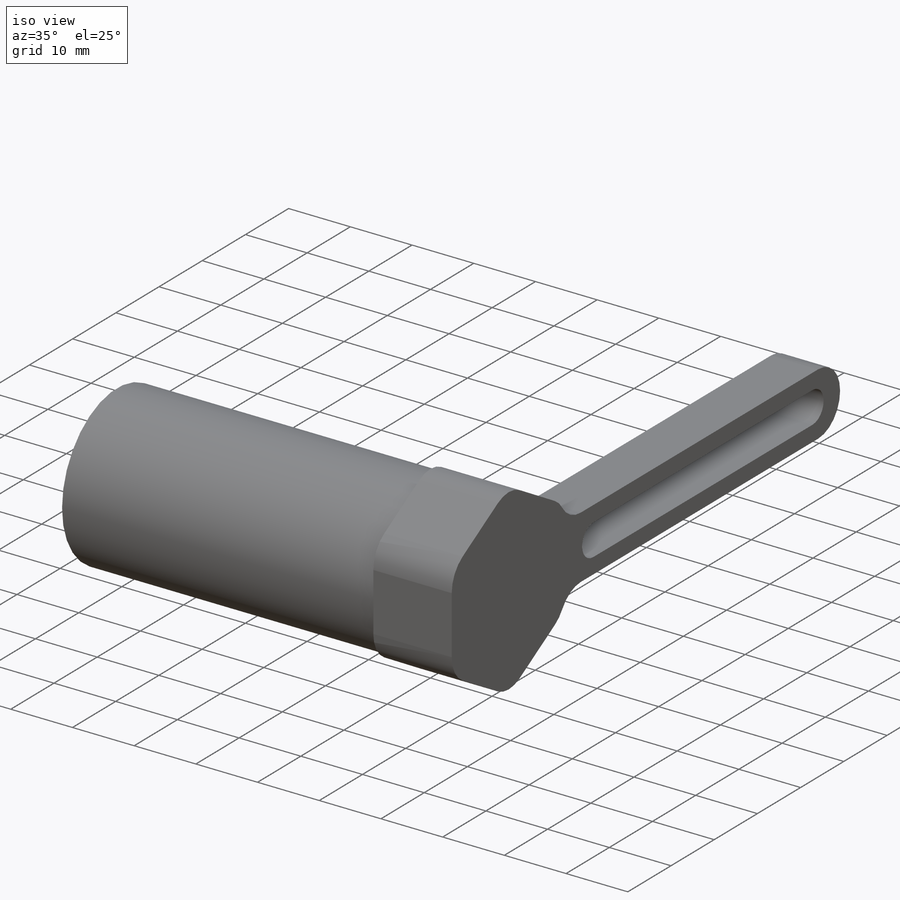
[diagram: iso view]
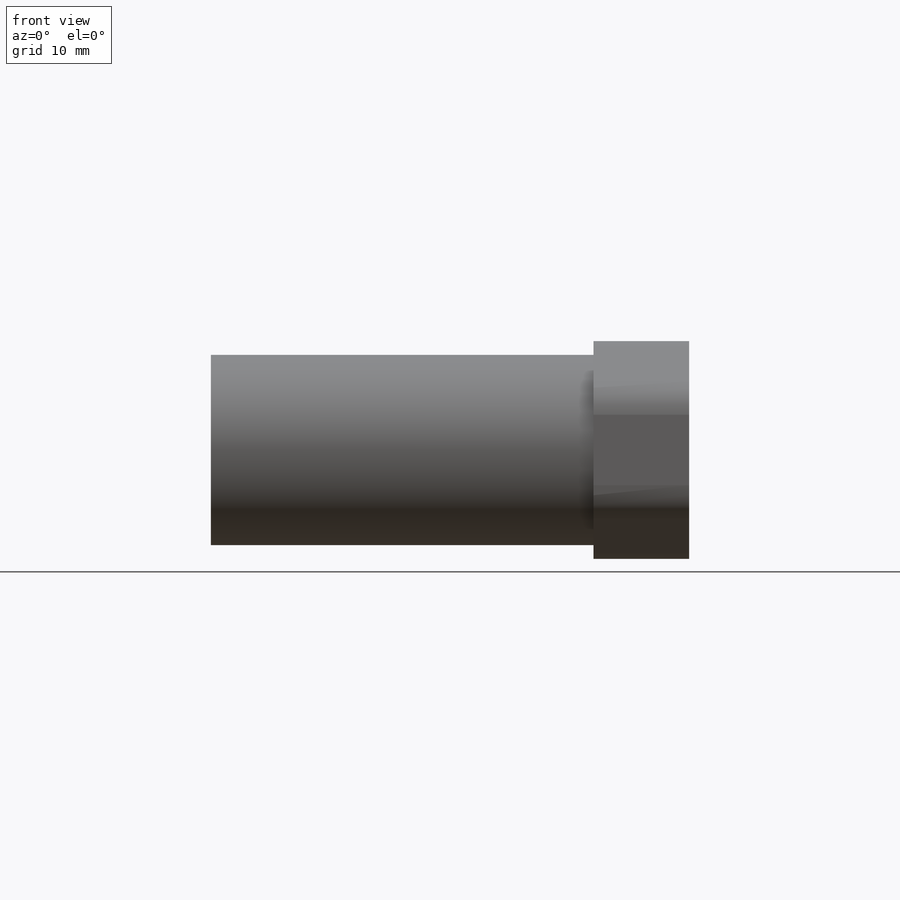
[diagram: front view]
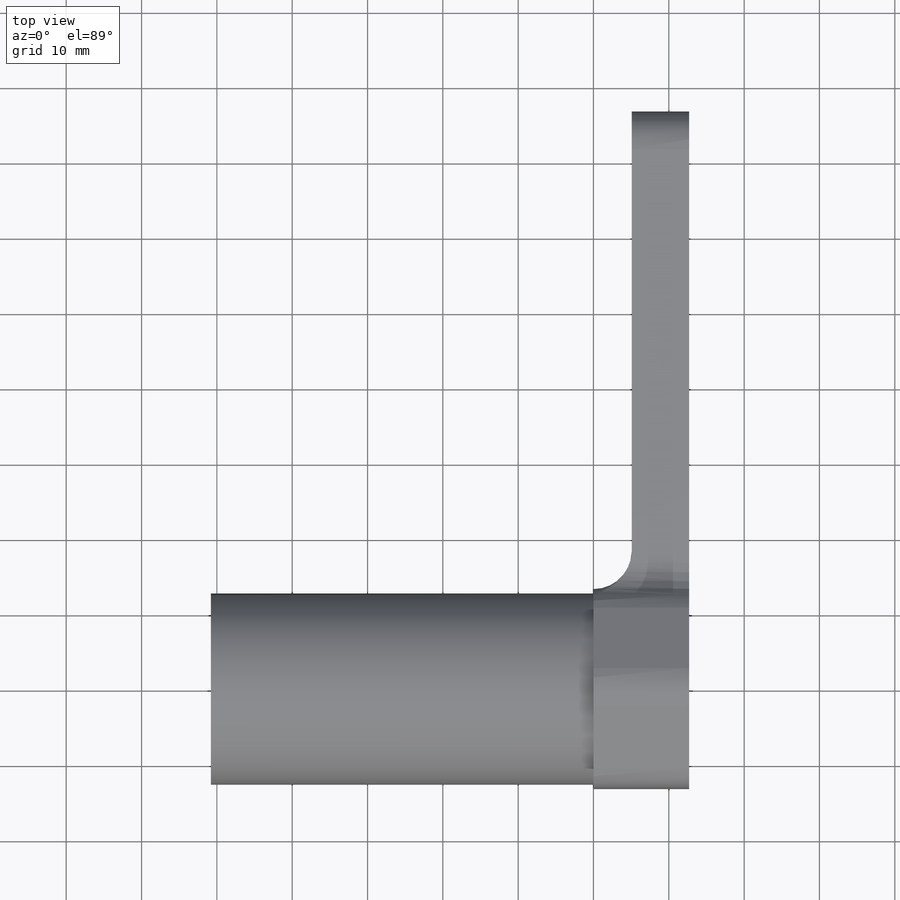
[diagram: top view]
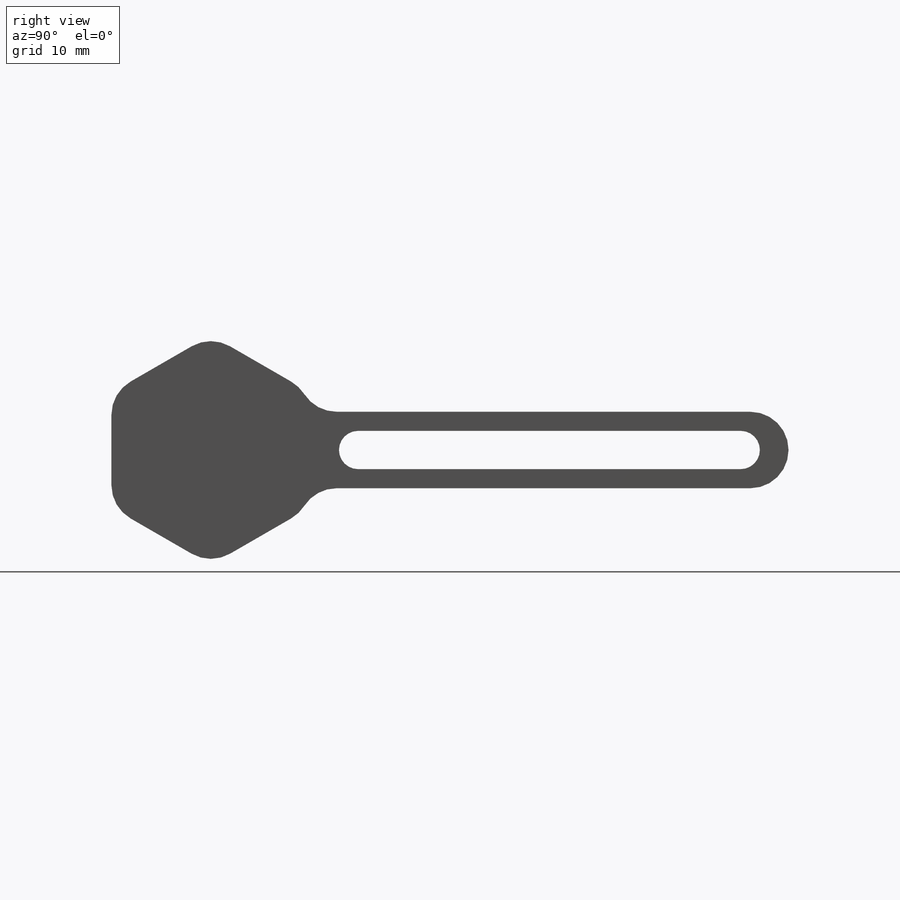
[diagram: right view]
SOLIDWORKS PART (.sldprt)
format: sldprt  version: not decoded by parser v0  size: 229,888 bytes
history: native  units: mm
features: sketch x4, extrude x3, fillet x3, material x1, cut_extrude x1 (+13 scaffold rows collapsed)
feature tree (25):
  scaffold x13  (default folders/planes/origin — collapsed)
  material  "Material <not specified>"
  sketch  "Sketch2"  dims[D1=25.4mm]
  extrude  "Boss-Extrude1"  Depth=50.8mm
  sketch  "Sketch3"  dims[D1=15.24mm]
  extrude  "Boss-Extrude2"  Depth=12.7mm
  sketch  "Sketch4"  dims[D1=10.16mm D2=63.5mm]
  extrude  "Boss-Extrude3"  Depth=7.62mm
  sketch  "Sketch5"  dims[D2=2.54mm D1=6.35mm D3=6.35mm]
  cut_extrude  "Cut-Extrude1"  [1 undecoded]
  fillet  "Fillet1"  Radius=5.08mm
  fillet  "Fillet2"  Radius=5.08mm
  fillet  "Fillet3"  Radius=5.08mm
decode coverage: 10 of 11 modeling features carry decoded parameters
note: 1 parameter value undecoded
note: suppression state not decoded; provenance and decode notes live in map.json
